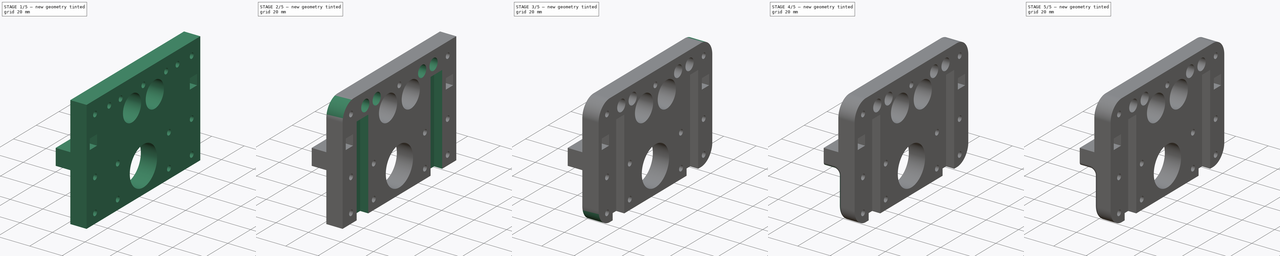
[diagram: build sequence overview — one tinted view per stage of 5, left to right]
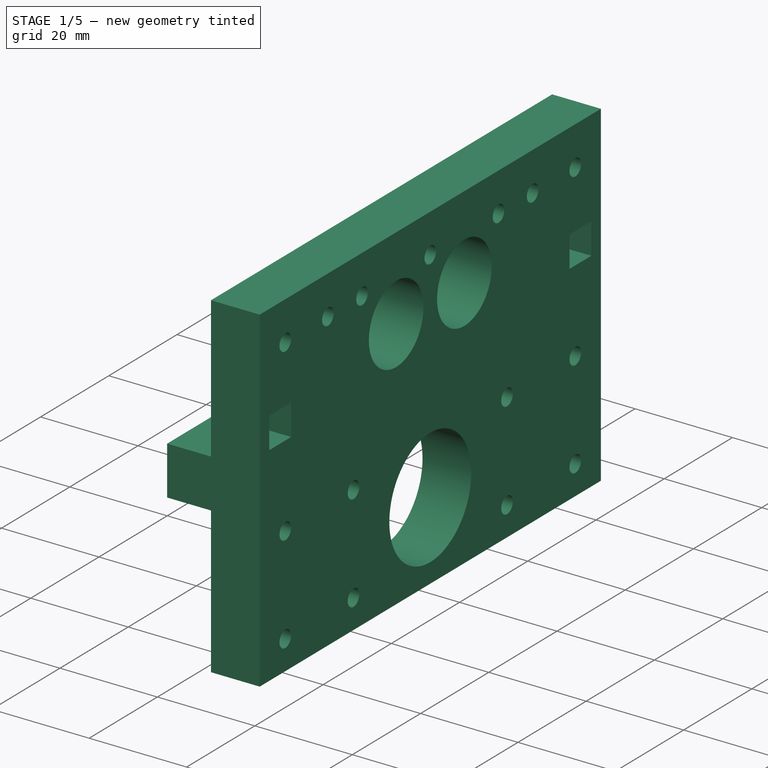
[diagram: stage 1 of 5 — iso view after this stage's code; geometry added in this stage tinted green]
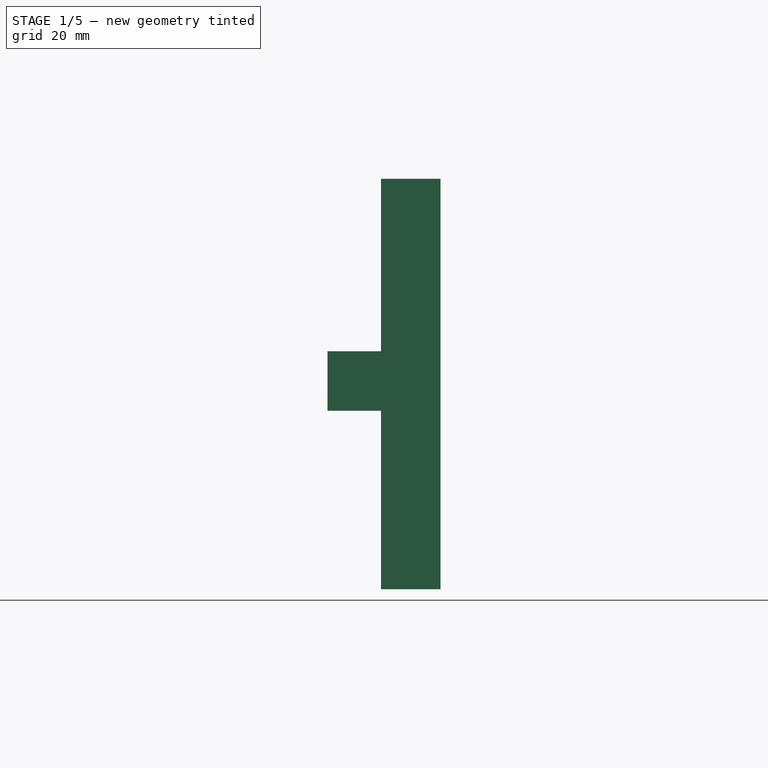
[diagram: stage 1 of 5 — front view after this stage's code; geometry added in this stage tinted green]
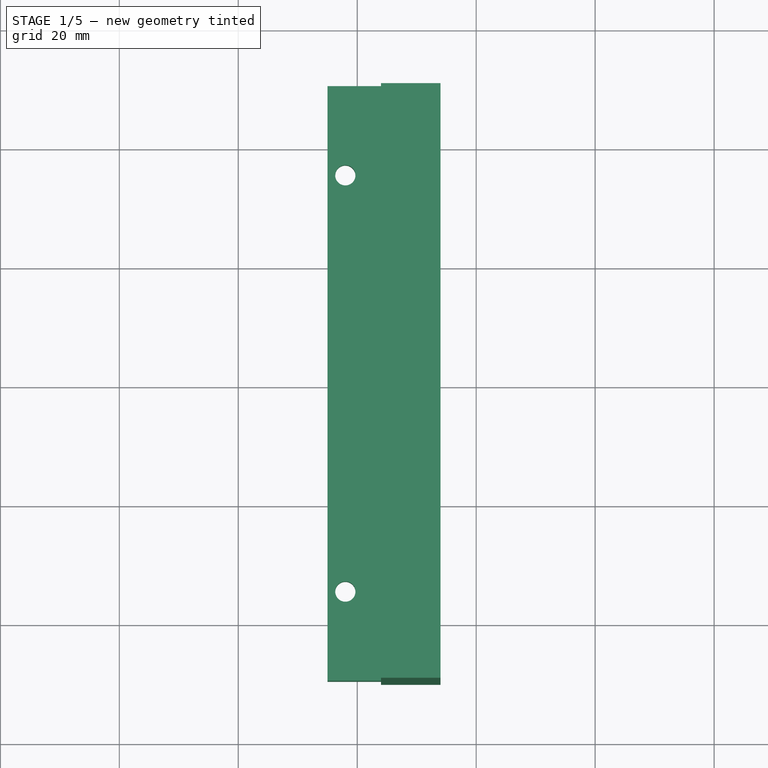
[diagram: stage 1 of 5 — top view after this stage's code; geometry added in this stage tinted green]
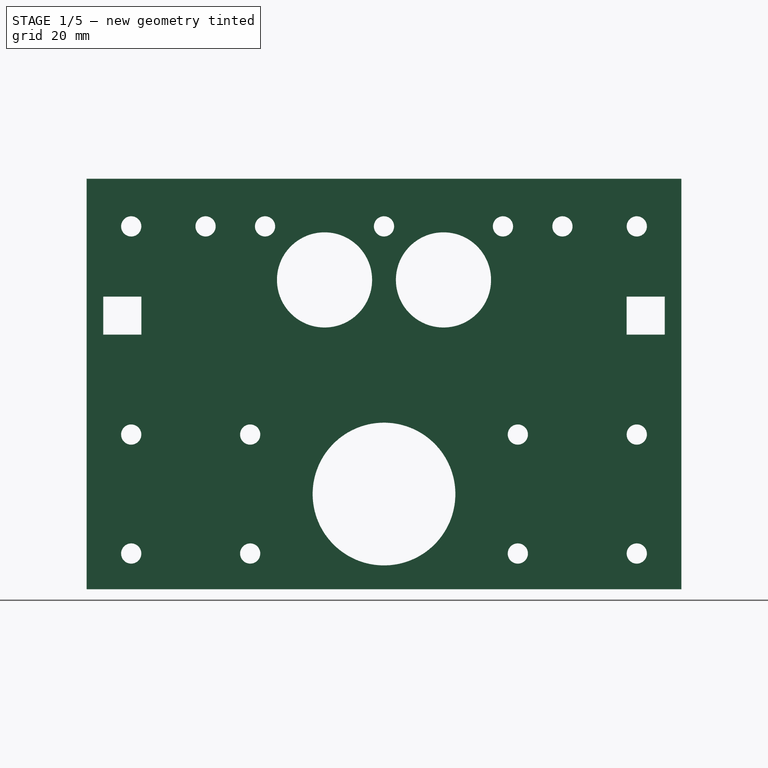
[diagram: stage 1 of 5 — right view after this stage's code; geometry added in this stage tinted green]
FCSTD DOCUMENT  (FreeCAD 0.16R6705 (Git))
Label: BodyBracketA
License: All rights reserved
LicenseURL: http://en.wikipedia.org/wiki/All_rights_reserved
objects: Sketcher::SketchObject×7, PartDesign::Pocket×6, PartDesign::Fillet×6, PartDesign::Chamfer×6, PartDesign::Pad×1
note: 33 computed .brp shape members not serialized (recipe doc carries the construction recipe); baked Part::Feature solids carry a one-line shape summary decoded from their .brp

FEATURE [Sketcher::SketchObject] Sketch001
  Placement = pos=(-86,0,0) rot=(0.57735,-0.57735,-0.57735;2.0944rad)
  sketch-geometry (43):
    g0: LineSegment StartX=-47.2 StartY=9.2 StartZ=0 EndX=-40.8 EndY=9.2 EndZ=0
    g1: LineSegment StartX=-40.8 StartY=9.2 StartZ=0 EndX=-40.8 EndY=2.8 EndZ=0
    g2: LineSegment StartX=-40.8 StartY=2.8 StartZ=0 EndX=-47.2 EndY=2.8 EndZ=0
    g3: LineSegment StartX=-47.2 StartY=2.8 StartZ=0 EndX=-47.2 EndY=9.2 EndZ=0
    g4: LineSegment StartX=40.8 StartY=9.2 StartZ=0 EndX=47.2 EndY=9.2 EndZ=0
    g5: LineSegment StartX=47.2 StartY=9.2 StartZ=0 EndX=47.2 EndY=2.8 EndZ=0
    g6: LineSegment StartX=47.2 StartY=2.8 StartZ=0 EndX=40.8 EndY=2.8 EndZ=0
    g7: LineSegment StartX=40.8 StartY=2.8 StartZ=0 EndX=40.8 EndY=9.2 EndZ=0
    g8: GeomPoint [constr] X=-44 Y=6 Z=0
    g9: GeomPoint [constr] X=44 Y=6 Z=0
    g10: Circle CenterX=-30 CenterY=21 CenterZ=0 NormalX=0 NormalY=0 NormalZ=1 Radius=1.7
    g11: Circle CenterX=30 CenterY=21 CenterZ=0 NormalX=0 NormalY=0 NormalZ=1 Radius=1.7
    g12: Circle CenterX=20 CenterY=21 CenterZ=0 NormalX=0 NormalY=0 NormalZ=1 Radius=1.7
    g13: Circle CenterX=-20 CenterY=21 CenterZ=0 NormalX=0 NormalY=0 NormalZ=1 Radius=1.7
    g14: LineSegment [constr] StartX=-30 StartY=21 StartZ=0 EndX=30 EndY=21 EndZ=0
    g15: LineSegment StartX=-50 StartY=29 StartZ=0 EndX=50 EndY=29 EndZ=0
    g16: LineSegment StartX=50 StartY=29 StartZ=0 EndX=50 EndY=-40 EndZ=0
    g17: LineSegment StartX=50 StartY=-40 StartZ=0 EndX=-50 EndY=-40 EndZ=0
    g18: LineSegment StartX=-50 StartY=-40 StartZ=0 EndX=-50 EndY=29 EndZ=0
    g19: Circle CenterX=0 CenterY=-24 CenterZ=0 NormalX=0 NormalY=0 NormalZ=1 Radius=12
    g20: Circle CenterX=10 CenterY=12 CenterZ=0 NormalX=0 NormalY=0 NormalZ=1 Radius=8
    g21: Circle CenterX=42.5 CenterY=-14 CenterZ=0 NormalX=0 NormalY=0 NormalZ=1 Radius=1.7
    g22: Circle CenterX=42.5 CenterY=-34 CenterZ=0 NormalX=0 NormalY=0 NormalZ=1 Radius=1.7
    g23: Circle CenterX=22.5 CenterY=-14 CenterZ=0 NormalX=0 NormalY=0 NormalZ=1 Radius=1.7
    g24: Circle CenterX=22.5 CenterY=-34 CenterZ=0 NormalX=0 NormalY=0 NormalZ=1 Radius=1.7
    g25: Circle CenterX=-22.5 CenterY=-14 CenterZ=0 NormalX=0 NormalY=0 NormalZ=1 Radius=1.7
    g26: Circle CenterX=-42.5 CenterY=-14 CenterZ=0 NormalX=0 NormalY=0 NormalZ=1 Radius=1.7
    g27: Circle CenterX=-42.5 CenterY=-34 CenterZ=0 NormalX=0 NormalY=0 NormalZ=1 Radius=1.7
    g28: Circle CenterX=-22.5 CenterY=-34 CenterZ=0 NormalX=0 NormalY=0 NormalZ=1 Radius=1.7
    g29: LineSegment [constr] StartX=42.5 StartY=-14 StartZ=0 EndX=-42.5 EndY=-14 EndZ=0
    g30: LineSegment [constr] StartX=-42.5 StartY=-14 StartZ=0 EndX=-42.5 EndY=-34 EndZ=0
    g31: LineSegment [constr] StartX=-42.5 StartY=-34 StartZ=0 EndX=42.5 EndY=-34 EndZ=0
    g32: LineSegment [constr] StartX=42.5 StartY=-34 StartZ=0 EndX=42.5 EndY=-14 EndZ=0
    g33: LineSegment [constr] StartX=-22.5 StartY=-34 StartZ=0 EndX=-22.5 EndY=-14 EndZ=0
    g34: LineSegment [constr] StartX=22.5 StartY=-14 StartZ=0 EndX=22.5 EndY=-34 EndZ=0
    g35: GeomPoint [constr] X=-32.5 Y=-14 Z=0
    g36: GeomPoint [constr] X=32.5 Y=-14 Z=0
    g37: Circle CenterX=-42.5 CenterY=21 CenterZ=0 NormalX=0 NormalY=0 NormalZ=1 Radius=1.7
    g38: Circle CenterX=42.5 CenterY=21 CenterZ=0 NormalX=0 NormalY=0 NormalZ=1 Radius=1.7
    g39: LineSegment [constr] StartX=42.5 StartY=-14 StartZ=0 EndX=42.5 EndY=21 EndZ=0
    g40: LineSegment [constr] StartX=30 StartY=21 StartZ=0 EndX=42.5 EndY=21 EndZ=0
    g41: Circle CenterX=0 CenterY=21 CenterZ=0 NormalX=0 NormalY=0 NormalZ=1 Radius=1.7
    g42: Circle CenterX=-10 CenterY=12 CenterZ=0 NormalX=0 NormalY=0 NormalZ=1 Radius=8
  constraints (107):
    c: Coincident(g0,g1)
    c: Coincident(g1,g2)
    c: Coincident(g2,g3)
    c: Coincident(g3,g0)
    c: Horizontal(g0)
    c: Horizontal(g2)
    c: Vertical(g1)
    c: Vertical(g3)
    c: Coincident(g4,g5)
    c: Coincident(g5,g6)
    c: Coincident(g6,g7)
    c: Coincident(g7,g4)
    c: Horizontal(g4)
    c: Horizontal(g6)
    c: Vertical(g5)
    c: Vertical(g7)
    c: Symmetric(g4,g0,g-2)
    c: Symmetric(g6,g1,g-2)
    c: Equal(g7,g4)
    c: DistanceY(g5,g5) = 6.4
    c: Symmetric(g2,g0,g8)
    c: Symmetric(g4,g6,g9)
    c: DistanceX(g8,g9) = 88
    c: Radius(g10) = 1.7
    c: Equal(g10,g13)
    c: Equal(g10,g12)
    c: Equal(g10,g11)
    c: Coincident(g14,g11)
    c: PointOnObject(g12,g14)
    c: PointOnObject(g13,g14)
    c: Coincident(g10,g14)
    c: Symmetric(g13,g12,g-2)
    c: DistanceX(g13,g12) = 40
    c: DistanceX(g10,g11) = 60
    c: Symmetric(g10,g11,g-2)
    c: DistanceY(g8,g10) = 15
    c: Coincident(g15,g16)
    c: Coincident(g16,g17)
    c: Coincident(g17,g18)
    c: Coincident(g18,g15)
    c: Horizontal(g15)
    c: Horizontal(g17)
    c: Vertical(g16)
    c: Vertical(g18)
    c: DistanceY(g-1,g8) = 6
    c: Symmetric(g17,g16,g-2)
    c: DistanceX(g17,g16) = 100
    c: DistanceY(g16,g-1) = 40
    c: DistanceY(g-1,g15) = 29
    c: PointOnObject(g19,g-2)
    c: DistanceY(g-1,g20) = 12
    c: Radius(g20) = 8
    c: DistanceY(g19,g-1) = 24
    c: Radius(g19) = 12
    c: Coincident(g29,g30)
    c: Coincident(g30,g31)
    c: Coincident(g31,g32)
    c: Coincident(g32,g29)
    c: Horizontal(g29)
    c: Vertical(g30)
    c: Vertical(g32)
    c: Coincident(g29,g21)
    c: Coincident(g30,g27)
    c: Coincident(g29,g26)
    c: Coincident(g22,g31)
    c: Coincident(g33,g28)
    c: Coincident(g33,g25)
    c: Vertical(g33)
    c: Coincident(g34,g23)
    c: Coincident(g34,g24)
    c: Vertical(g34)
    c: PointOnObject(g24,g31)
    c: PointOnObject(g23,g29)
    c: PointOnObject(g25,g29)
    c: PointOnObject(g28,g31)
    c: Radius(g27) = 1.7
    c: Equal(g27,g26)
    c: Equal(g27,g25)
    c: Equal(g27,g28)
    c: Equal(g27,g23)
    c: Equal(g27,g24)
    c: Equal(g27,g21)
    c: Equal(g27,g22)
    c: Symmetric(g28,g24,g-2)
    c: Symmetric(g27,g22,g-2)
    c: DistanceX(g24,g22) = 20
    c: DistanceY(g22,g21) = 20
    c: Symmetric(g25,g26,g35)
    c: Symmetric(g21,g23,g36)
    c: DistanceX(g35,g36) = 65
    c: DistanceY(g25,g-1) = 14
    c: Vertical(g39)
    c: Coincident(g21,g39)
    c: Coincident(g38,g39)
    c: Symmetric(g37,g38,g-2)
    c: Radius(g38) = 1.7
    c: Equal(g38,g37)
    c: Coincident(g40,g11)
    c: Coincident(g40,g38)
    c: Horizontal(g40)
    c: DistanceY(g21,g38) = 35
    c: Equal(g41,g12)
    c: Equal(g42,g20)
    c: Symmetric(g42,g20,g-2)
    c: DistanceX(g42,g20) = 20
    c: PointOnObject(g41,g-2)
    c: PointOnObject(g41,g14)
FEATURE [PartDesign::Pad] Pad
  Length = 19
  Length2 = 100
  Placement = pos=(-86,0,0) rot=(0.57735,-0.57735,-0.57735;2.0944rad)
  Sketch = -> Sketch001
  Type = 0
FEATURE [Sketcher::SketchObject] Sketch
  Placement = pos=(-86,50,0) rot=(-0.57735,0.57735,0.57735;2.0944rad)
  Support = -> Pad [Face4]
  sketch-geometry (10):
    g0: LineSegment StartX=-30 StartY=40 StartZ=0 EndX=0 EndY=40 EndZ=0
    g1: LineSegment StartX=0 StartY=40 StartZ=0 EndX=0 EndY=10 EndZ=0
    g2: LineSegment StartX=0 StartY=10 StartZ=0 EndX=-30 EndY=10 EndZ=0
    g3: LineSegment StartX=-30 StartY=10 StartZ=0 EndX=-30 EndY=40 EndZ=0
    g4: LineSegment StartX=10 StartY=40 StartZ=0 EndX=40 EndY=40 EndZ=0
    g5: LineSegment StartX=40 StartY=40 StartZ=0 EndX=40 EndY=10 EndZ=0
    g6: LineSegment StartX=40 StartY=10 StartZ=0 EndX=10 EndY=10 EndZ=0
    g7: LineSegment StartX=10 StartY=10 StartZ=0 EndX=10 EndY=40 EndZ=0
    g8: LineSegment [constr] StartX=0 StartY=10 StartZ=0 EndX=10 EndY=10 EndZ=0
    g9: LineSegment [constr] StartX=0 StartY=40 StartZ=0 EndX=10 EndY=40 EndZ=0
  constraints (28):
    c: Coincident(g0,g1)
    c: Coincident(g1,g2)
    c: Coincident(g2,g3)
    c: Coincident(g3,g0)
    c: Horizontal(g0)
    c: Horizontal(g2)
    c: Vertical(g1)
    c: Vertical(g3)
    c: DistanceX(g2,g2) = 30
    c: PointOnObject(g1,g-2)
    c: DistanceY(g-1,g1) = 10
    c: DistanceY(g2,g0) = 30
    c: Coincident(g4,g5)
    c: Coincident(g5,g6)
    c: Coincident(g6,g7)
    c: Coincident(g7,g4)
    c: Horizontal(g4)
    c: Horizontal(g6)
    c: Vertical(g5)
    c: Vertical(g7)
    c: Coincident(g8,g1)
    c: Coincident(g8,g6)
    c: Horizontal(g8)
    c: Coincident(g9,g0)
    c: Coincident(g9,g4)
    c: Horizontal(g9)
    c: DistanceX(g4,g4) = 30
    c: DistanceX(g1,g6) = 10
FEATURE [PartDesign::Pocket] Pocket
  Length = 5
  Placement = pos=(-86,0,0) rot=(0.57735,-0.57735,-0.57735;2.0944rad)
  Sketch = -> Sketch
  Type = 1
FEATURE [Sketcher::SketchObject] Sketch002
  Placement = pos=(-86,0,-10) rot=(-0.707107,0.707107,0;3.14159rad)
  Support = -> Pocket [Face34]
  sketch-geometry (2):
    g0: Circle CenterX=-35 CenterY=16 CenterZ=0 NormalX=0 NormalY=0 NormalZ=1 Radius=4
    g1: Circle CenterX=35 CenterY=16 CenterZ=0 NormalX=0 NormalY=0 NormalZ=1 Radius=4
  constraints (5):
    c: Symmetric(g1,g0,g-2)
    c: Radius(g0) = 4
    c: Equal(g0,g1)
    c: DistanceX(g0,g1) = 70
    c: DistanceY(g-1,g0) = 16
FEATURE [PartDesign::Pocket] Pocket001
  Length = 4
  Placement = pos=(-86,0,0) rot=(0.57735,-0.57735,-0.57735;2.0944rad)
  Sketch = -> Sketch002
  Type = 0
FEATURE [Sketcher::SketchObject] Sketch003
  Placement = pos=(-86,0,-10) rot=(0.707107,-0.707107,0;3.14159rad)
  Support = -> Pocket001 [Face34]
  sketch-geometry (2):
    g0: Circle CenterX=-35 CenterY=16 CenterZ=0 NormalX=0 NormalY=0 NormalZ=1 Radius=1.7
    g1: Circle CenterX=35 CenterY=16 CenterZ=0 NormalX=0 NormalY=0 NormalZ=1 Radius=1.7
  constraints (5):
    c: DistanceX(g0,g1) = 70
    c: Symmetric(g0,g1,g-2)
    c: DistanceY(g-1,g0) = 16
    c: Radius(g0) = 1.7
    c: Equal(g0,g1)
FEATURE [PartDesign::Pocket] Pocket002
  Length = 5
  Placement = pos=(-86,0,0) rot=(0.57735,-0.57735,-0.57735;2.0944rad)
  Sketch = -> Sketch003
  Type = 1
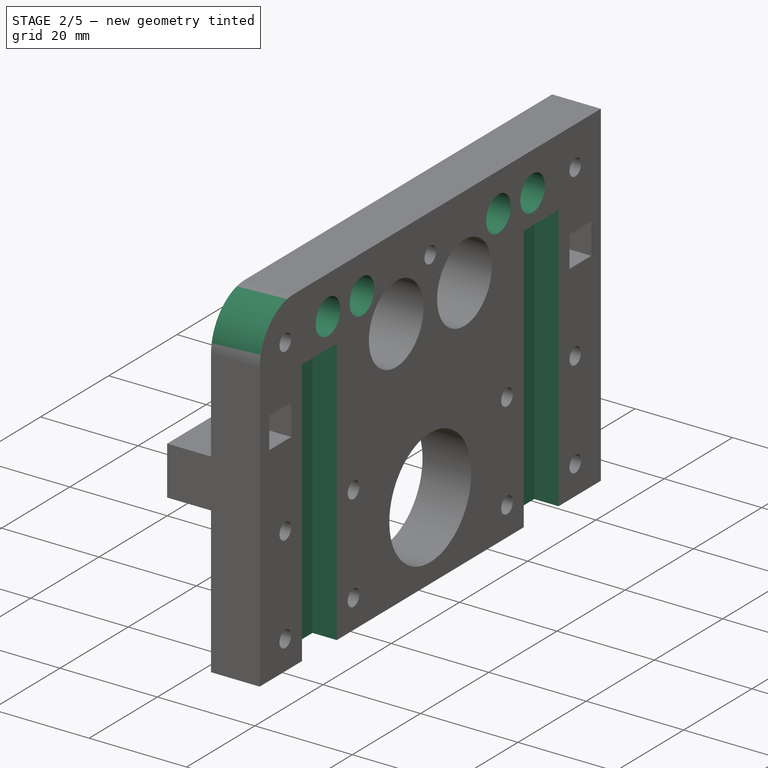
[diagram: stage 2 of 5 — iso view after this stage's code; geometry added in this stage tinted green]
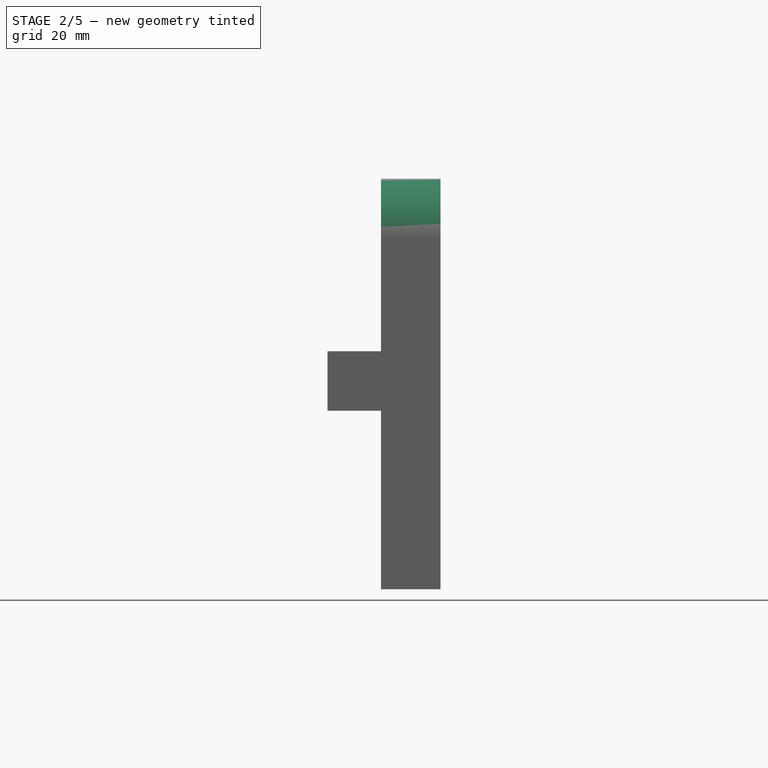
[diagram: stage 2 of 5 — front view after this stage's code; geometry added in this stage tinted green]
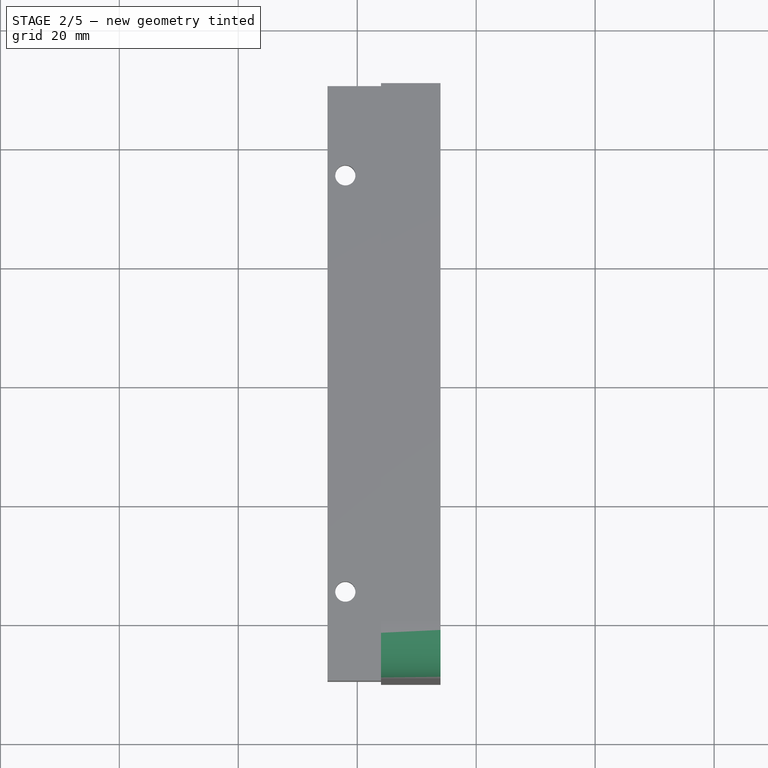
[diagram: stage 2 of 5 — top view after this stage's code; geometry added in this stage tinted green]
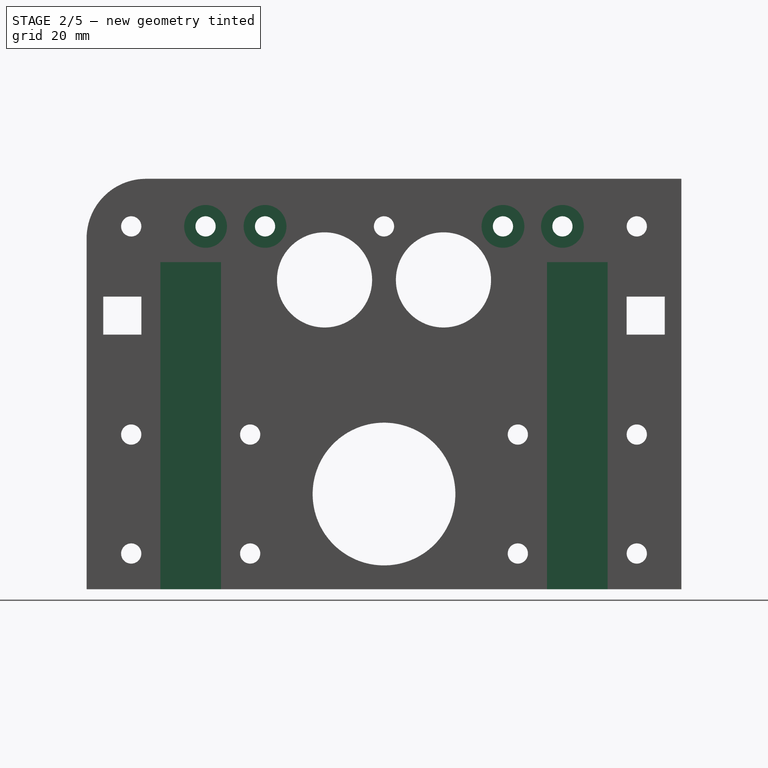
[diagram: stage 2 of 5 — right view after this stage's code; geometry added in this stage tinted green]
FEATURE [Sketcher::SketchObject] Sketch004
  Placement = pos=(-86,0,0) rot=(-0.57735,0.57735,-0.57735;2.0944rad)
  Support = -> Pocket002 [Face2]
  sketch-geometry (12):
    g0: LineSegment StartX=-37.6 StartY=85 StartZ=0 EndX=-27.4 EndY=85 EndZ=0
    g1: LineSegment StartX=-27.4 StartY=85 StartZ=0 EndX=-27.4 EndY=-15 EndZ=0
    g2: LineSegment StartX=-27.4 StartY=-15 StartZ=0 EndX=-37.6 EndY=-15 EndZ=0
    g3: LineSegment StartX=-37.6 StartY=-15 StartZ=0 EndX=-37.6 EndY=85 EndZ=0
    g4: LineSegment StartX=27.4 StartY=85 StartZ=0 EndX=37.6 EndY=85 EndZ=0
    g5: LineSegment StartX=37.6 StartY=85 StartZ=0 EndX=37.6 EndY=-15 EndZ=0
    g6: LineSegment StartX=37.6 StartY=-15 StartZ=0 EndX=27.4 EndY=-15 EndZ=0
    g7: LineSegment StartX=27.4 StartY=-15 StartZ=0 EndX=27.4 EndY=85 EndZ=0
    g8: LineSegment [constr] StartX=-27.4 StartY=-15 StartZ=0 EndX=27.4 EndY=-15 EndZ=0
    g9: LineSegment [constr] StartX=-27.4 StartY=85 StartZ=0 EndX=27.4 EndY=85 EndZ=0
    g10: GeomPoint [constr] X=-32.5 Y=85 Z=0
    g11: GeomPoint [constr] X=32.5 Y=85 Z=0
  constraints (30):
    c: Coincident(g0,g1)
    c: Coincident(g1,g2)
    c: Coincident(g2,g3)
    c: Coincident(g3,g0)
    c: Horizontal(g0)
    c: Horizontal(g2)
    c: Vertical(g1)
    c: Vertical(g3)
    c: Coincident(g4,g5)
    c: Coincident(g5,g6)
    c: Coincident(g6,g7)
    c: Coincident(g7,g4)
    c: Horizontal(g4)
    c: Horizontal(g6)
    c: Vertical(g5)
    c: Vertical(g7)
    c: DistanceX(g0,g0) = 10.2
    c: DistanceX(g4,g4) = 10.2
    c: Coincident(g8,g1)
    c: Horizontal(g8)
    c: Coincident(g6,g8)
    c: Coincident(g9,g0)
    c: Horizontal(g9)
    c: Coincident(g9,g4)
    c: DistanceY(g1,g-1) = 15
    c: DistanceY(g2,g0) = 100
    c: Symmetric(g4,g4,g11)
    c: Symmetric(g0,g0,g10)
    c: DistanceX(g10,g11) = 65
    c: Symmetric(g4,g0,g-2)
FEATURE [PartDesign::Pocket] Pocket003
  Length = 5
  Placement = pos=(-86,0,0) rot=(0.57735,-0.57735,-0.57735;2.0944rad)
  Sketch = -> Sketch004
  Type = 0
FEATURE [Sketcher::SketchObject] Sketch005
  Placement = pos=(-86,0,0) rot=(-0.57735,0.57735,-0.57735;2.0944rad)
  Support = -> Pocket003 [Face2]
  sketch-geometry (5):
    g0: Circle CenterX=-30 CenterY=-21 CenterZ=0 NormalX=0 NormalY=0 NormalZ=1 Radius=3.6
    g1: Circle CenterX=-20 CenterY=-21 CenterZ=0 NormalX=0 NormalY=0 NormalZ=1 Radius=3.6
    g2: Circle CenterX=20 CenterY=-21 CenterZ=0 NormalX=0 NormalY=0 NormalZ=1 Radius=3.6
    g3: Circle CenterX=30 CenterY=-21 CenterZ=0 NormalX=0 NormalY=0 NormalZ=1 Radius=3.6
    g4: LineSegment [constr] StartX=-30 StartY=-21 StartZ=0 EndX=-20 EndY=-21 EndZ=0
  constraints (12):
    c: Symmetric(g1,g2,g-2)
    c: Symmetric(g0,g3,g-2)
    c: Coincident(g4,g0)
    c: Horizontal(g4)
    c: Coincident(g4,g1)
    c: DistanceX(g1,g2) = 40
    c: DistanceX(g0,g1) = 10
    c: DistanceY(g1,g-1) = 21
    c: Radius(g1) = 3.6
    c: Equal(g1,g0)
    c: Equal(g1,g2)
    c: Equal(g1,g3)
FEATURE [PartDesign::Pocket] Pocket004
  Length = 5
  Placement = pos=(-86,0,0) rot=(0.57735,-0.57735,-0.57735;2.0944rad)
  Sketch = -> Sketch005
  Type = 0
FEATURE [Sketcher::SketchObject] Sketch006
  Placement = pos=(-96,0,0) rot=(0.57735,-0.57735,-0.57735;2.0944rad)
  Support = -> Pocket004 [Face4]
  sketch-geometry (20):
    g0: Circle CenterX=-42.5 CenterY=21 CenterZ=0 NormalX=0 NormalY=0 NormalZ=1 Radius=2.6
    g1: Circle CenterX=0 CenterY=21 CenterZ=0 NormalX=0 NormalY=0 NormalZ=1 Radius=2.6
    g2: Circle CenterX=42.5 CenterY=21 CenterZ=0 NormalX=0 NormalY=0 NormalZ=1 Radius=2.6
    g3: Circle CenterX=-42.5 CenterY=-14 CenterZ=0 NormalX=0 NormalY=0 NormalZ=1 Radius=2.6
    g4: Circle CenterX=-22.5 CenterY=-14 CenterZ=0 NormalX=0 NormalY=0 NormalZ=1 Radius=2.6
    g5: Circle CenterX=-42.5 CenterY=-34 CenterZ=0 NormalX=0 NormalY=0 NormalZ=1 Radius=2.6
    g6: Circle CenterX=-22.5 CenterY=-34 CenterZ=0 NormalX=0 NormalY=0 NormalZ=1 Radius=2.6
    g7: Circle CenterX=22.5 CenterY=-34 CenterZ=0 NormalX=0 NormalY=0 NormalZ=1 Radius=2.6
    g8: Circle CenterX=22.5 CenterY=-14 CenterZ=0 NormalX=0 NormalY=0 NormalZ=1 Radius=2.6
    g9: Circle CenterX=42.5 CenterY=-14 CenterZ=0 NormalX=0 NormalY=0 NormalZ=1 Radius=2.6
    g10: Circle CenterX=42.5 CenterY=-34 CenterZ=0 NormalX=0 NormalY=0 NormalZ=1 Radius=2.6
    g11: LineSegment [constr] StartX=-42.5 StartY=21 StartZ=0 EndX=42.5 EndY=21 EndZ=0
    g12: LineSegment [constr] StartX=42.5 StartY=21 StartZ=0 EndX=42.5 EndY=-34 EndZ=0
    g13: LineSegment [constr] StartX=42.5 StartY=-34 StartZ=0 EndX=-42.5 EndY=-34 EndZ=0
    g14: LineSegment [constr] StartX=-42.5 StartY=-34 StartZ=0 EndX=-42.5 EndY=21 EndZ=0
    g15: LineSegment [constr] StartX=-42.5 StartY=-14 StartZ=0 EndX=42.5 EndY=-14 EndZ=0
    g16: LineSegment [constr] StartX=-22.5 StartY=-14 StartZ=0 EndX=-22.5 EndY=-34 EndZ=0
    g17: LineSegment [constr] StartX=22.5 StartY=-14 StartZ=0 EndX=22.5 EndY=-34 EndZ=0
    g18: GeomPoint [constr] X=-32.5 Y=-34 Z=0
    g19: GeomPoint [constr] X=32.5 Y=-34 Z=0
  constraints (48):
    c: Radius(g0) = 2.6
    c: Equal(g0,g1)
    c: Equal(g0,g2)
    c: Equal(g0,g9)
    c: Equal(g0,g8)
    c: Equal(g0,g7)
    c: Equal(g0,g10)
    c: Equal(g0,g6)
    c: Equal(g0,g5)
    c: Equal(g0,g3)
    c: Equal(g0,g4)
    c: Coincident(g11,g12)
    c: Coincident(g12,g13)
    c: Coincident(g13,g14)
    c: Coincident(g14,g11)
    c: Horizontal(g11)
    c: Horizontal(g13)
    c: Vertical(g12)
    c: Vertical(g14)
    c: Coincident(g11,g0)
    c: Coincident(g12,g10)
    c: Coincident(g11,g2)
    c: Symmetric(g2,g0,g-2)
    c: PointOnObject(g1,g-2)
    c: PointOnObject(g1,g11)
    c: Coincident(g15,g3)
    c: Coincident(g15,g9)
    c: Horizontal(g15)
    c: PointOnObject(g9,g12)
    c: PointOnObject(g3,g14)
    c: Coincident(g5,g13)
    c: DistanceY(g10,g9) = 20
    c: DistanceY(g9,g-1) = 14
    c: Coincident(g16,g4)
    c: Coincident(g16,g6)
    c: Vertical(g16)
    c: Coincident(g17,g8)
    c: Coincident(g17,g7)
    c: Vertical(g17)
    c: PointOnObject(g6,g13)
    c: PointOnObject(g7,g13)
    c: PointOnObject(g8,g15)
    c: Symmetric(g4,g8,g-2)
    c: DistanceX(g7,g10) = 20
    c: Symmetric(g10,g7,g19)
    c: Symmetric(g6,g5,g18)
    c: DistanceX(g18,g19) = 65
    c: DistanceY(g9,g2) = 35
FEATURE [PartDesign::Pocket] Pocket005
  Length = 5
  Placement = pos=(-86,0,0) rot=(0.57735,-0.57735,-0.57735;2.0944rad)
  Sketch = -> Sketch006
  Type = 0
FEATURE [PartDesign::Fillet] Fillet
  Base = -> Pocket005 [Edge2]
  Placement = pos=(-86,0,0) rot=(0.57735,-0.57735,-0.57735;2.0944rad)
  Radius = 10
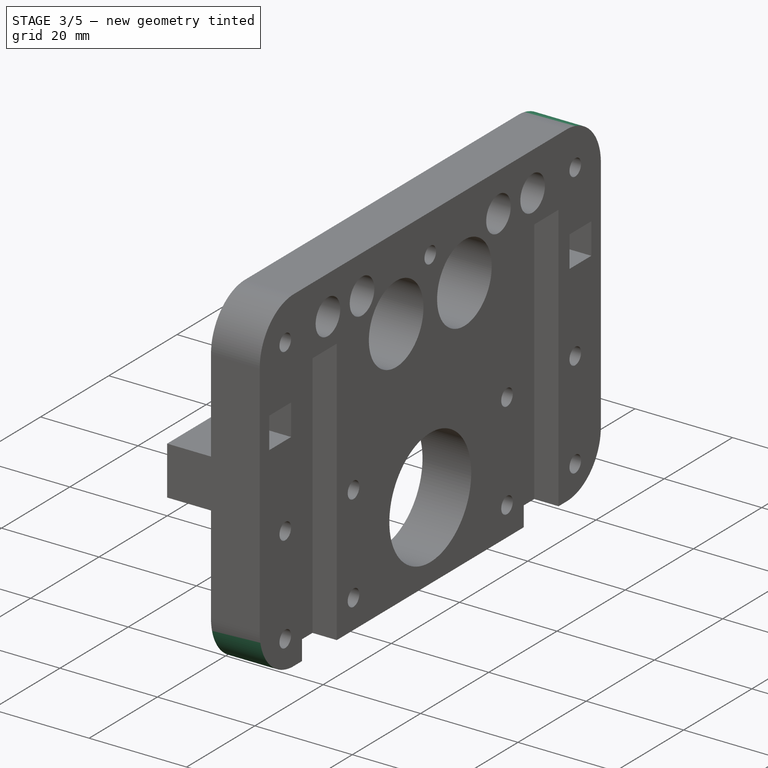
[diagram: stage 3 of 5 — iso view after this stage's code; geometry added in this stage tinted green]
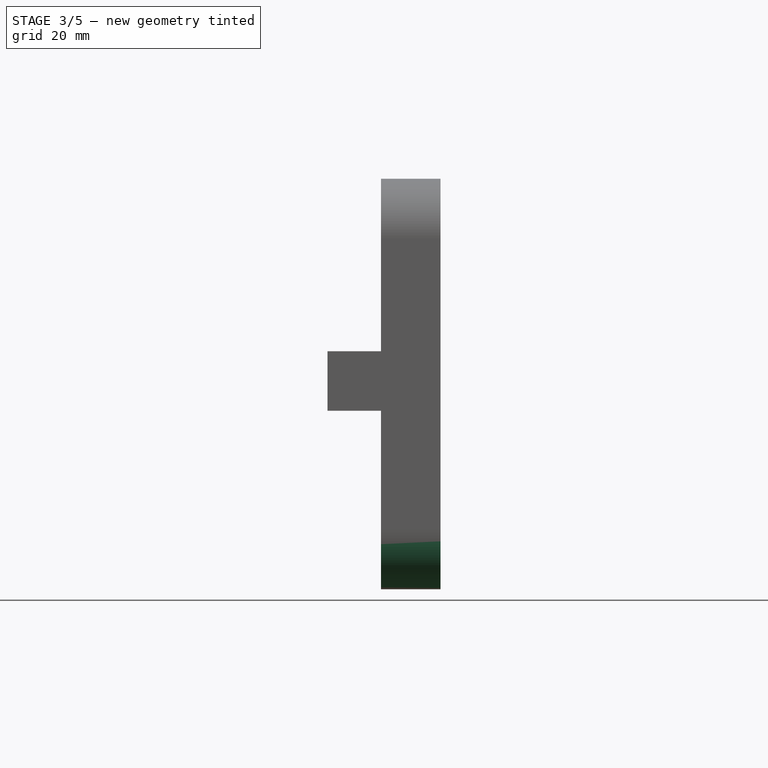
[diagram: stage 3 of 5 — front view after this stage's code; geometry added in this stage tinted green]
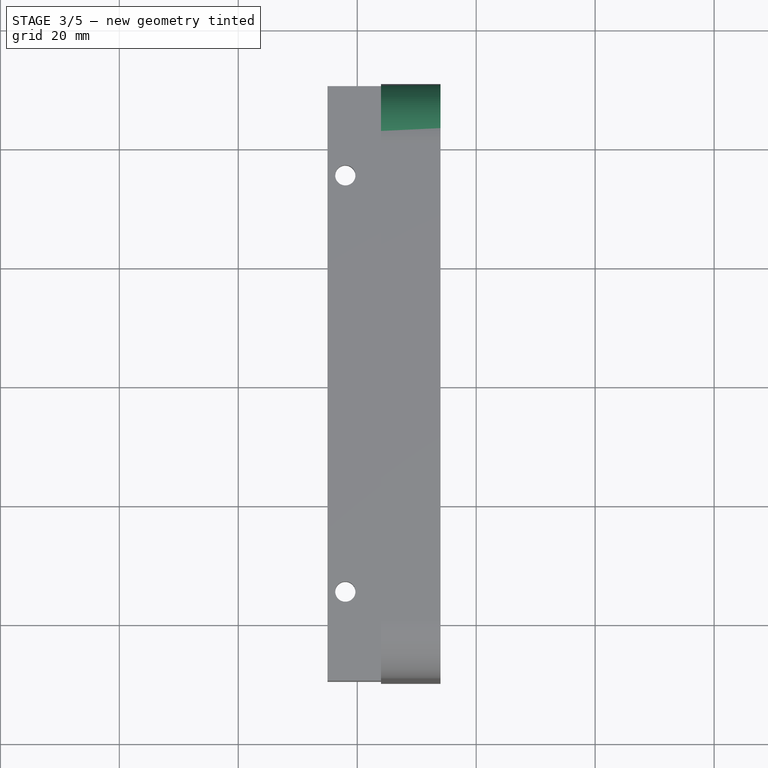
[diagram: stage 3 of 5 — top view after this stage's code; geometry added in this stage tinted green]
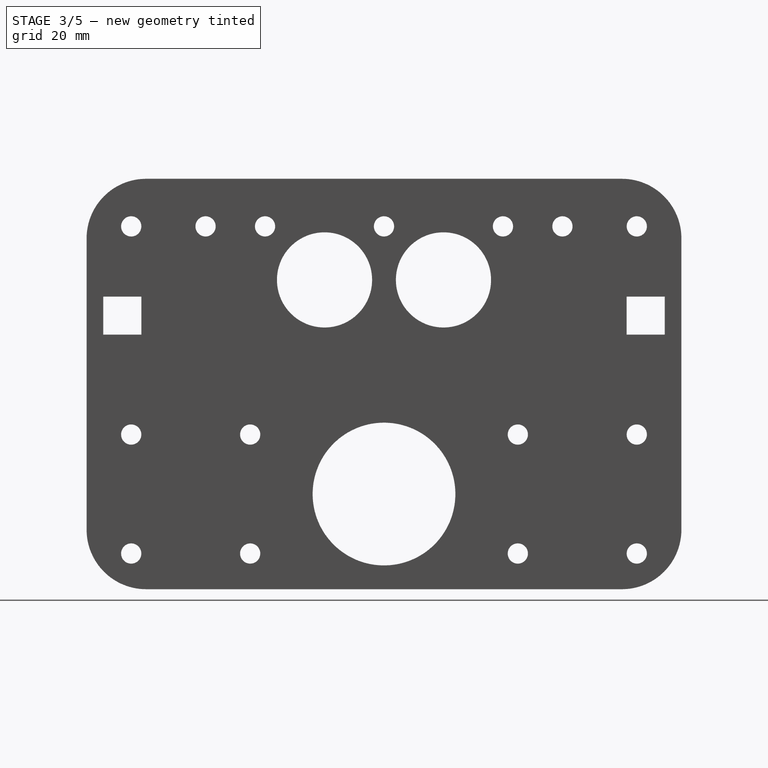
[diagram: stage 3 of 5 — right view after this stage's code; geometry added in this stage tinted green]
FEATURE [PartDesign::Fillet] Fillet001
  Base = -> Fillet [Edge70]
  Placement = pos=(-86,0,0) rot=(0.57735,-0.57735,-0.57735;2.0944rad)
  Radius = 10
FEATURE [PartDesign::Fillet] Fillet002
  Base = -> Fillet001 [Edge55]
  Placement = pos=(-86,0,0) rot=(0.57735,-0.57735,-0.57735;2.0944rad)
  Radius = 10
FEATURE [PartDesign::Fillet] Fillet003
  Base = -> Fillet002 [Edge43]
  Placement = pos=(-86,0,0) rot=(0.57735,-0.57735,-0.57735;2.0944rad)
  Radius = 10
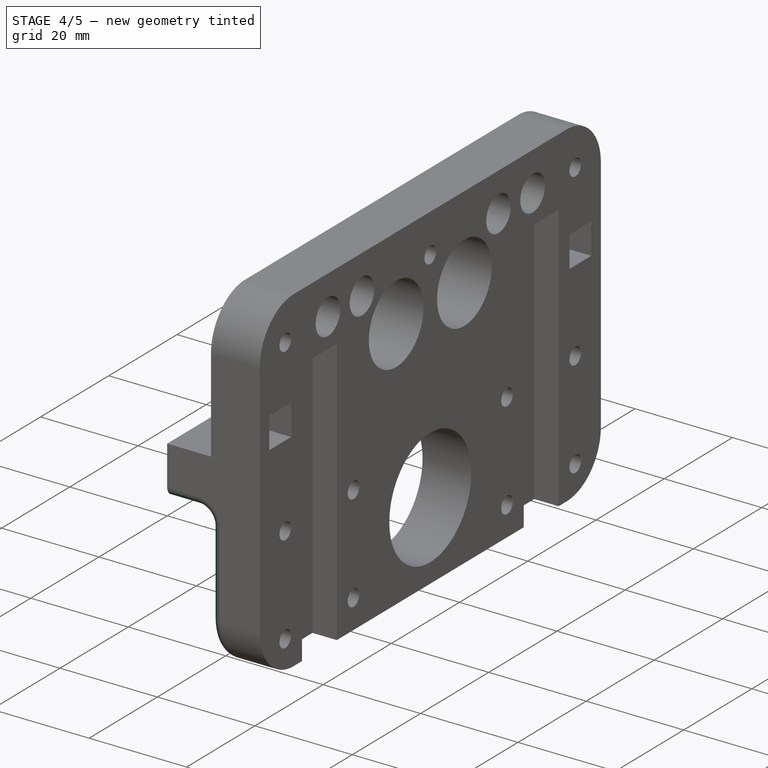
[diagram: stage 4 of 5 — iso view after this stage's code; geometry added in this stage tinted green]
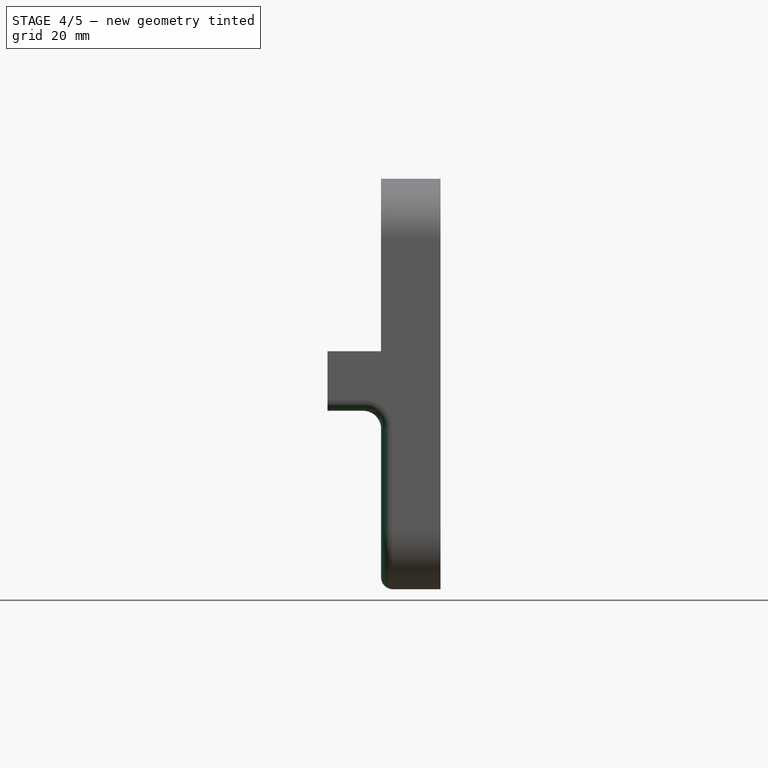
[diagram: stage 4 of 5 — front view after this stage's code; geometry added in this stage tinted green]
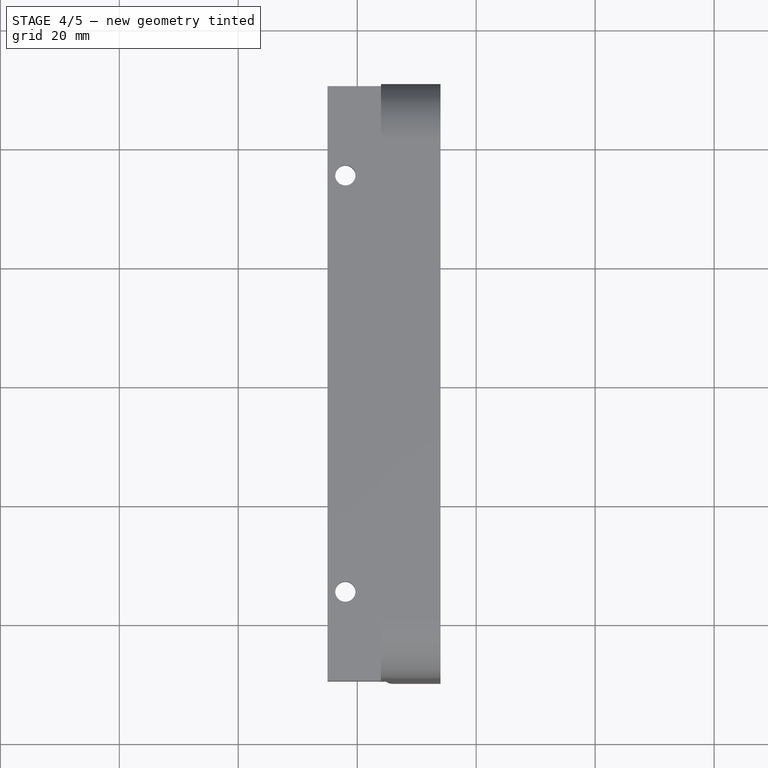
[diagram: stage 4 of 5 — top view after this stage's code; geometry added in this stage tinted green]
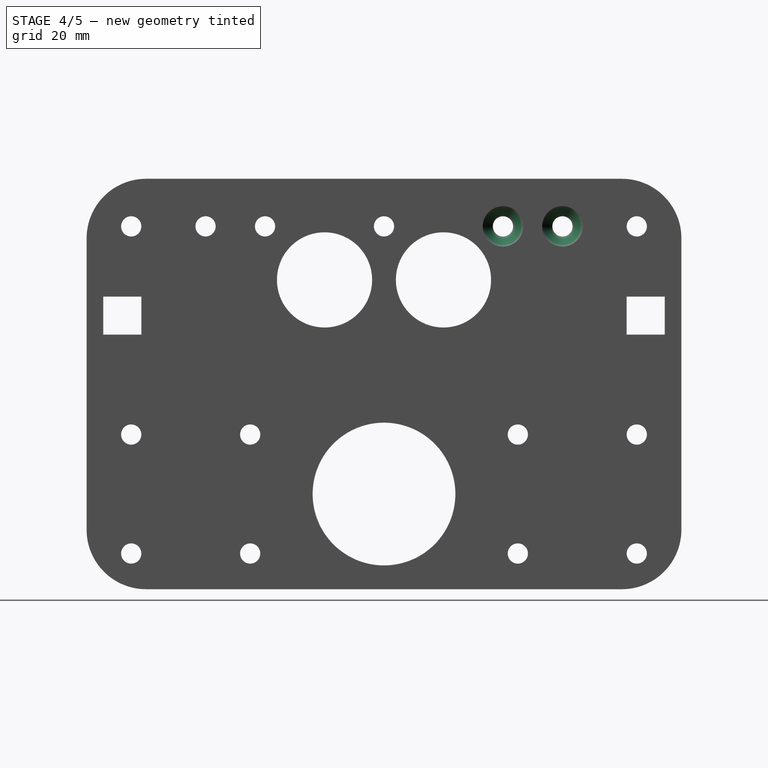
[diagram: stage 4 of 5 — right view after this stage's code; geometry added in this stage tinted green]
FEATURE [PartDesign::Fillet] Fillet004
  Base = -> Fillet003 [Edge143]
  Placement = pos=(-86,0,0) rot=(0.57735,-0.57735,-0.57735;2.0944rad)
  Radius = 3
FEATURE [PartDesign::Fillet] Fillet005
  Base = -> Fillet004 [Edge1]
  Placement = pos=(-86,0,0) rot=(0.57735,-0.57735,-0.57735;2.0944rad)
  Radius = 2
FEATURE [PartDesign::Chamfer] Chamfer
  Base = -> Fillet005 [Edge211]
  Placement = pos=(-86,0,0) rot=(0.57735,-0.57735,-0.57735;2.0944rad)
  Size = 1.7
FEATURE [PartDesign::Chamfer] Chamfer001
  Base = -> Chamfer [Edge73]
  Placement = pos=(-86,0,0) rot=(0.57735,-0.57735,-0.57735;2.0944rad)
  Size = 1.7
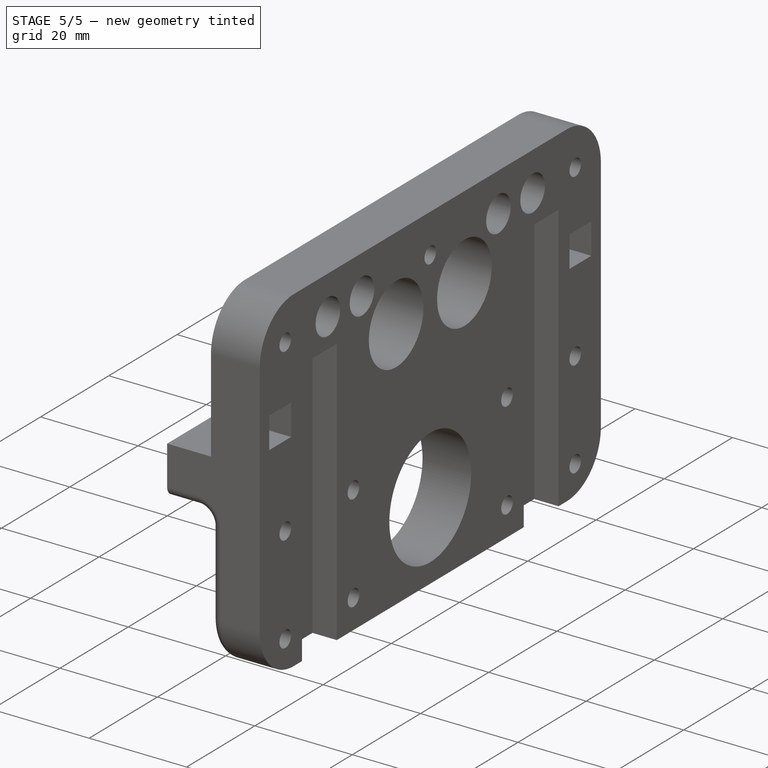
[diagram: stage 5 of 5 — iso view after this stage's code; geometry added in this stage tinted green]
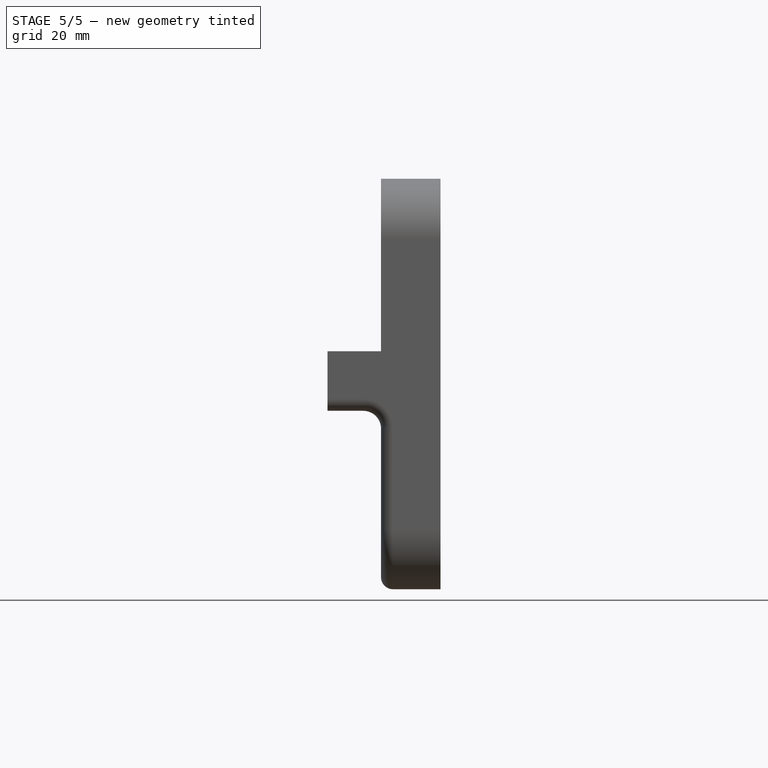
[diagram: stage 5 of 5 — front view after this stage's code; geometry added in this stage tinted green]
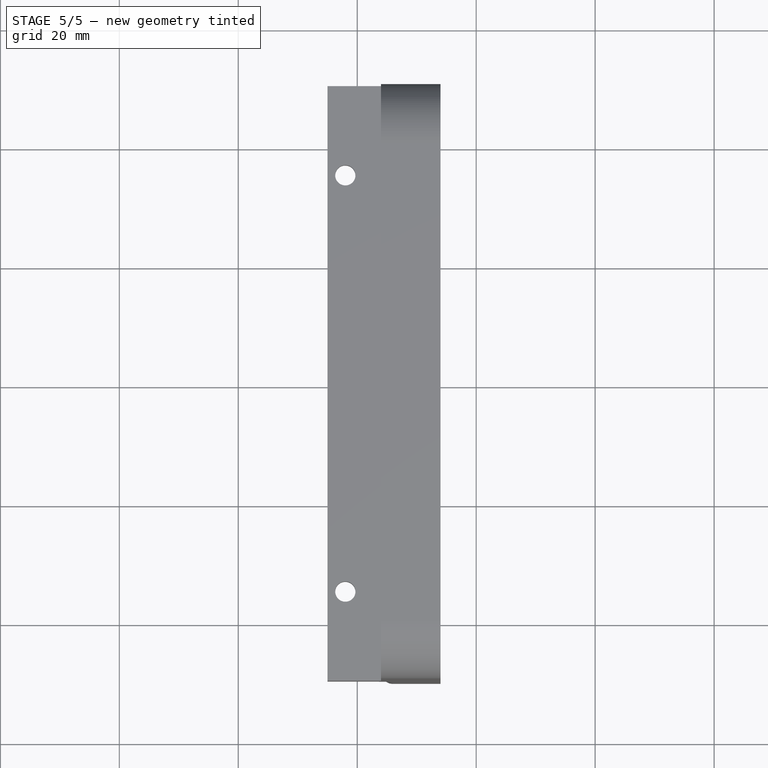
[diagram: stage 5 of 5 — top view after this stage's code; geometry added in this stage tinted green]
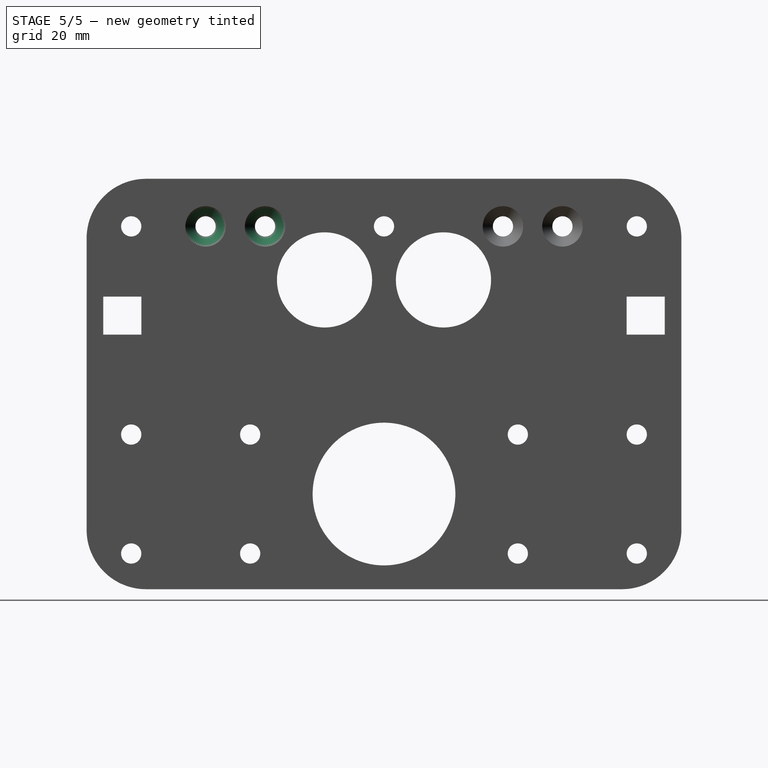
[diagram: stage 5 of 5 — right view after this stage's code; geometry added in this stage tinted green]
FEATURE [PartDesign::Chamfer] Chamfer002
  Base = -> Chamfer001 [Edge61]
  Placement = pos=(-86,0,0) rot=(0.57735,-0.57735,-0.57735;2.0944rad)
  Size = 1.7
FEATURE [PartDesign::Chamfer] Chamfer003
  Base = -> Chamfer002 [Edge61]
  Placement = pos=(-86,0,0) rot=(0.57735,-0.57735,-0.57735;2.0944rad)
  Size = 1.7
FEATURE [PartDesign::Chamfer] Chamfer004
  Base = -> Chamfer003 [Edge140]
  Placement = pos=(-86,0,0) rot=(0.57735,-0.57735,-0.57735;2.0944rad)
  Size = 1
FEATURE [PartDesign::Chamfer] Chamfer005
  Base = -> Chamfer004 [Edge60]
  Placement = pos=(-86,0,0) rot=(0.57735,-0.57735,-0.57735;2.0944rad)
  Size = 1
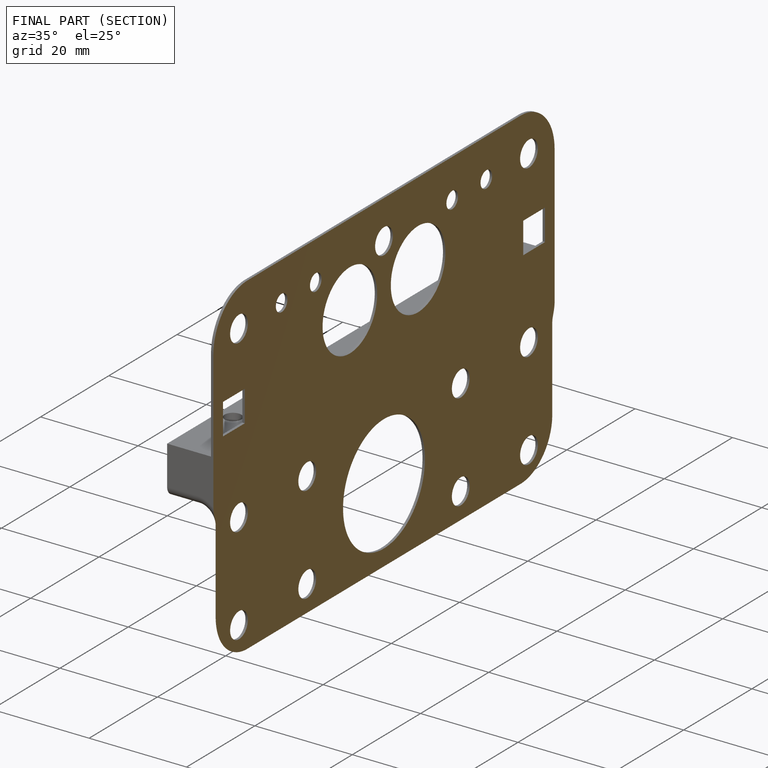
[diagram: finished part — half-section view (interior)]
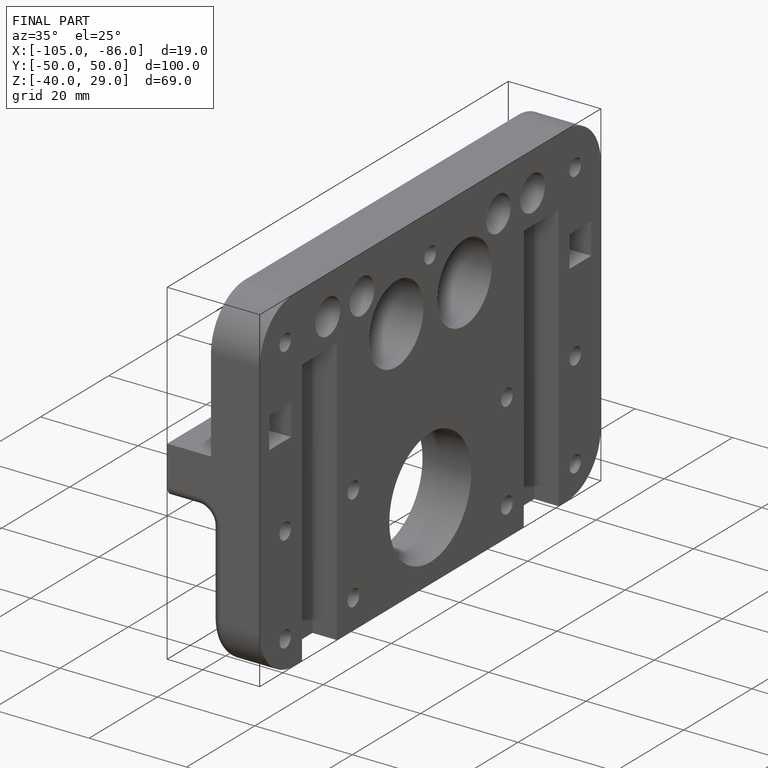
[diagram: finished part — iso view with bounding-box wireframe]
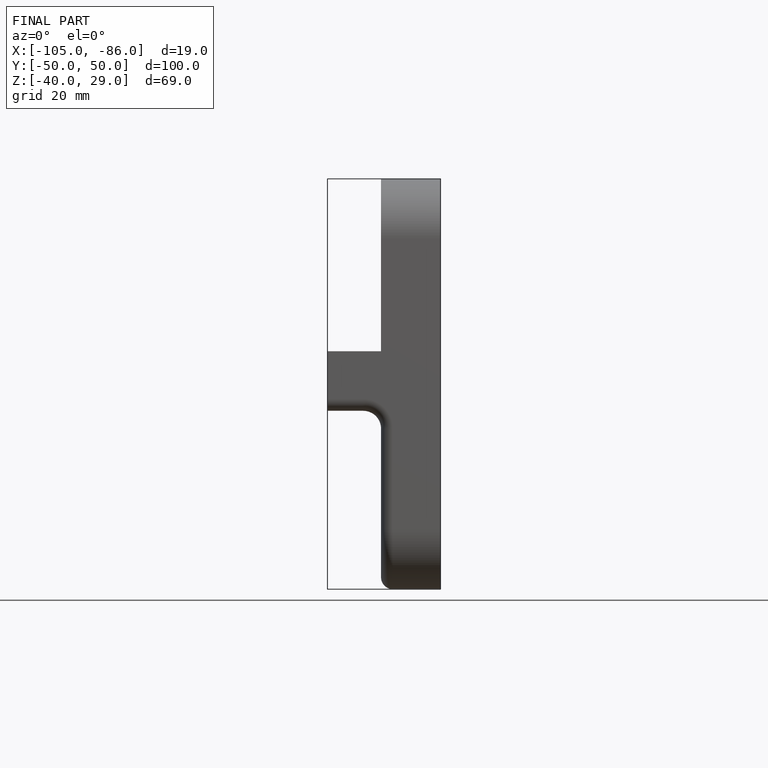
[diagram: finished part — front view with bounding-box wireframe]
